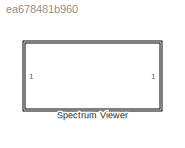
MODEL slx_ea678481b960
KIND model
CONFIG AbsTol = auto
CONFIG EnableMultiTasking = off
CONFIG FixedStep = auto
CONFIG MaxStep = auto
CONFIG MinStep = auto
CONFIG RelTol = 1e-3
CONFIG SampleTimeConstraint = Unconstrained
CONFIG SolverName = VariableStepAuto
CONFIG StartTime = 0.0
CONFIG StopTime = 10.0
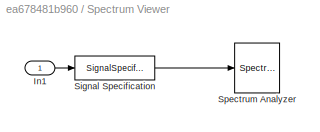
BLOCK [SubSystem] Spectrum Viewer
BLOCK [Inport] Spectrum Viewer/In1
BLOCK [SignalSpecification] Spectrum Viewer/Signal Specification
  SampleTime = 1/16e4
BLOCK [SpectrumAnalyzer] Spectrum Viewer/Spectrum Analyzer
  WasSavedAsWebScope = on
  WindowInvariantSamplesPerUpdate = on
LINE Spectrum Viewer/In1:1 -> Spectrum Viewer/Signal Specification:1
LINE Spectrum Viewer/Signal Specification:1 -> Spectrum Viewer/Spectrum Analyzer:1
